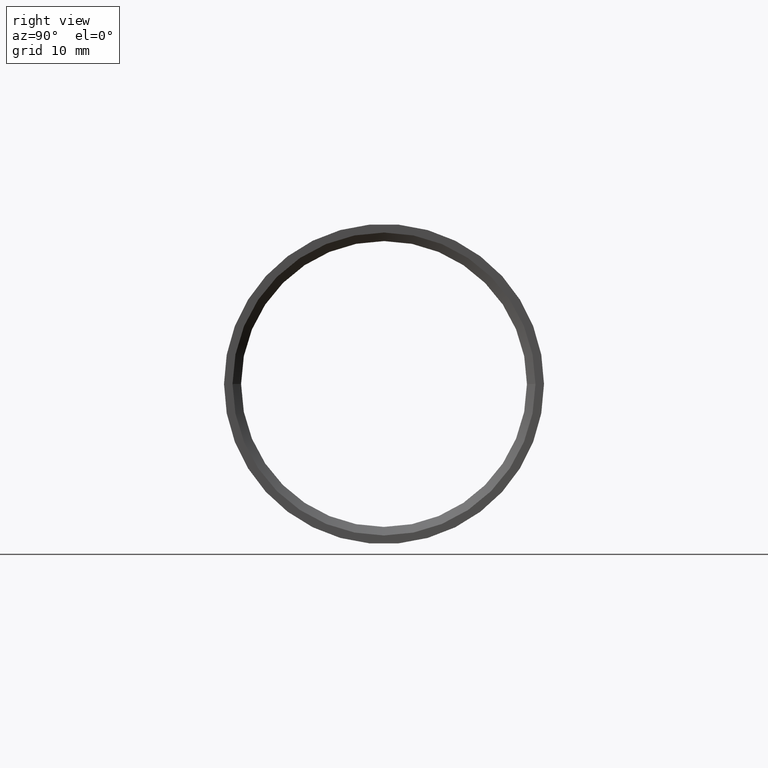
[diagram: clean part render]
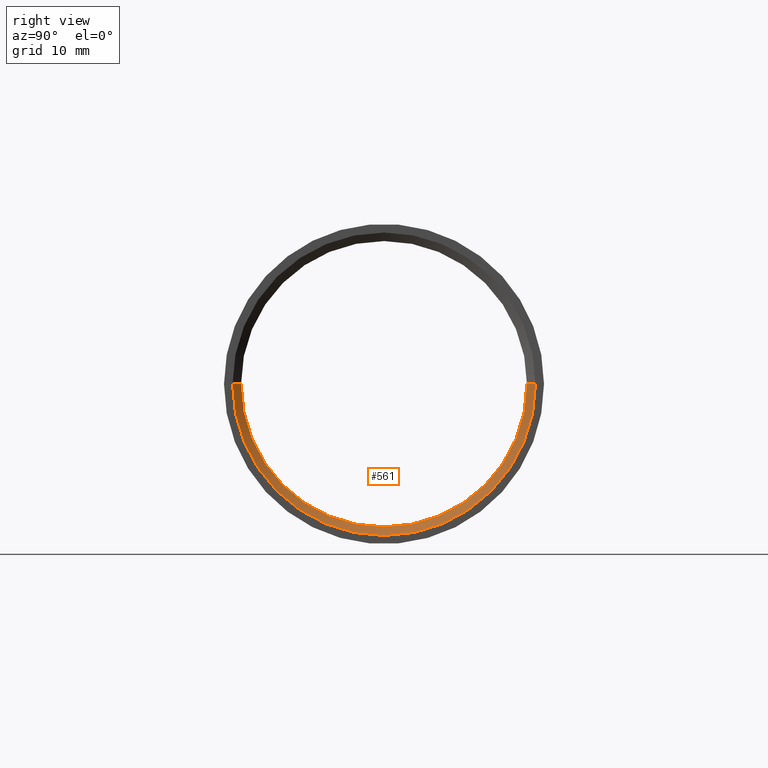
[diagram: same view with one face highlighted and labeled with its STEP entity id]
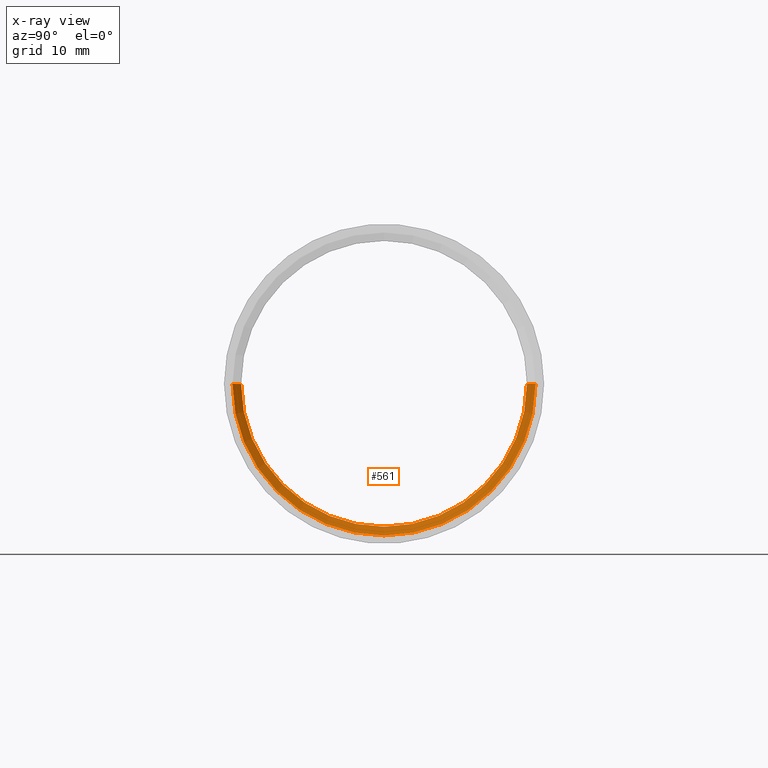
[diagram: x-ray of the same camera — body ghosted, the highlighted face saturated]
A machine part, right view. The second image highlights one B-rep face of the part: STEP entity #561.
The next image is the same camera in x-ray: the body ghosted, the highlighted face saturated — about 0% of this face is hidden behind the body in this view.
In plain terms, the highlighted conical surface has half-angle 60 deg.
Its self-contained STEP definition (entity closure, byte-faithful):
#5 = CARTESIAN_POINT ( 'NONE',  ( -8.727045640245106100E-018, 0.7100000000004025300, 0.0000000000000000000 ) ) ;
#10 = DIRECTION ( 'NONE',  ( 1.000000000000000000, 1.139601642983670200E-016, 0.0000000000000000000 ) ) ;
#13 = EDGE_CURVE ( 'NONE', #565, #226, #289, .T. ) ;
#84 = VERTEX_POINT ( 'NONE', #353 ) ;
#106 = DIRECTION ( 'NONE',  ( 0.4999999999999961100, -0.8660254037844408200, 1.060575238724909900E-016 ) ) ;
#108 = CARTESIAN_POINT ( 'NONE',  ( -0.02309401076758469500, 0.6700000000004026100, 0.0000000000000000000 ) ) ;
#133 = CONICAL_SURFACE ( 'NONE', #463, 0.6700000000004026100, 1.047197551196602300 ) ;
#155 = VECTOR ( 'NONE', #166, 39.37007874015748100 ) ;
#166 = DIRECTION ( 'NONE',  ( 0.4999999999999958400, 0.8660254037844409300, 0.0000000000000000000 ) ) ;
#170 = ORIENTED_EDGE ( 'NONE', *, *, #230, .F. ) ;
#202 = DIRECTION ( 'NONE',  ( -1.000000000000000000, -1.139601642983670200E-016, 0.0000000000000000000 ) ) ;
#206 = ORIENTED_EDGE ( 'NONE', *, *, #556, .T. ) ;
#222 = ORIENTED_EDGE ( 'NONE', *, *, #13, .F. ) ;
#226 = VERTEX_POINT ( 'NONE', #5 ) ;
#230 = EDGE_CURVE ( 'NONE', #591, #565, #449, .T. ) ;
#240 = EDGE_CURVE ( 'NONE', #226, #84, #300, .T. ) ;
#289 = LINE ( 'NONE', #421, #155 ) ;
#300 = CIRCLE ( 'NONE', #446, 0.7100000000004025300 ) ;
#311 = VECTOR ( 'NONE', #106, 39.37007874015748900 ) ;
#317 = DIRECTION ( 'NONE',  ( -1.146764549578525900E-016, 1.000000000000000000, 0.0000000000000000000 ) ) ;
#353 = CARTESIAN_POINT ( 'NONE',  ( 1.534764289835705100E-016, -0.7100000000004025300, 8.694992273951137400E-017 ) ) ;
#366 = DIRECTION ( 'NONE',  ( 1.000000000000000000, 1.139601642983670200E-016, 0.0000000000000000000 ) ) ;
#374 = CARTESIAN_POINT ( 'NONE',  ( -0.02309401076758461900, -2.631797261382200400E-018, 0.0000000000000000000 ) ) ;
#399 = AXIS2_PLACEMENT_3D ( 'NONE', #374, #10, #317 ) ;
#421 = CARTESIAN_POINT ( 'NONE',  ( -0.02309401076758469500, 0.6700000000004026100, 0.0000000000000000000 ) ) ;
#446 = AXIS2_PLACEMENT_3D ( 'NONE', #568, #202, #524 ) ;
#449 = CIRCLE ( 'NONE', #399, 0.6700000000004026100 ) ;
#463 = AXIS2_PLACEMENT_3D ( 'NONE', #583, #366, #539 ) ;
#487 = CARTESIAN_POINT ( 'NONE',  ( -0.02309401076758454300, -0.6700000000004026100, 8.205133554292197200E-017 ) ) ;
#524 = DIRECTION ( 'NONE',  ( -1.139601642983670200E-016, 1.000000000000000000, 0.0000000000000000000 ) ) ;
#539 = DIRECTION ( 'NONE',  ( -1.146764549578525900E-016, 1.000000000000000000, 0.0000000000000000000 ) ) ;
#540 = CARTESIAN_POINT ( 'NONE',  ( -0.02309401076758454300, -0.6700000000004026100, 8.205133554292197200E-017 ) ) ;
#556 = EDGE_CURVE ( 'NONE', #591, #84, #594, .T. ) ;
#561 = ADVANCED_FACE ( 'NONE', ( #577 ), #133, .F. ) ;
#565 = VERTEX_POINT ( 'NONE', #108 ) ;
#568 = CARTESIAN_POINT ( 'NONE',  ( 7.237469167166270700E-017, 8.072267554779046100E-033, 0.0000000000000000000 ) ) ;
#577 = FACE_OUTER_BOUND ( 'NONE', #593, .T. ) ;
#583 = CARTESIAN_POINT ( 'NONE',  ( -0.02309401076758461900, -2.631797261382200400E-018, 0.0000000000000000000 ) ) ;
#591 = VERTEX_POINT ( 'NONE', #540 ) ;
#593 = EDGE_LOOP ( 'NONE', ( #170, #206, #634, #222 ) ) ;
#594 = LINE ( 'NONE', #487, #311 ) ;
#634 = ORIENTED_EDGE ( 'NONE', *, *, #240, .F. ) ;